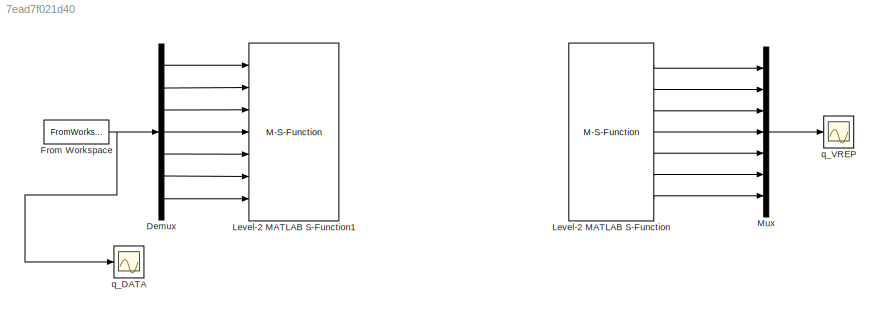
MODEL slx_7ead7f021d40
KIND model
CONFIG AbsTol = auto
CONFIG EnableMultiTasking = on
CONFIG FixedStep = 0.005
CONFIG InitFcn = clear all\nclc\n\nglobal clientID\nglobal vrep\nglobal vecJoints nJoints\n\nload_path\n\n\naddpath('C:\Program Files\V-REP3\V-REP_PRO_EDU\programming\remoteApiBindings\lib\lib\Windows\64Bit')\n\n\ndisp('Program started');\nvrep=remApi('remoteApi'); % using the prototype file (remoteApiProto.m)\nvrep.simxFinish(-1); % just in case, close all opened connections\nclientID=vrep.simxStart('127.0.0.1',19997,true,true,5...<+921ch>
CONFIG MaxStep = 0.010
CONFIG MinStep = auto
CONFIG RelTol = 1e-3
CONFIG SampleTimeConstraint = Unconstrained
CONFIG Solver = FixedStepDiscrete
CONFIG SolverName = FixedStepDiscrete
CONFIG StartTime = 0
CONFIG StopFcn = global clientID\n\nvrep.simxStopSimulation(clientID,vrep.simx_opmode_oneshot_wait);\n
CONFIG StopTime = 21
BLOCK [Demux] Demux
  DisplayOption = bar
  Outputs = 7
  Ports = [1, 7]
BLOCK [FromWorkspace] From Workspace
  OutDataTypeStr = double
  SampleTime = 0
  VariableName = configs
  ZeroCross = on
BLOCK [M-S-Function] Level-2 MATLAB S-Function
  FunctionName = Vrep_source
  Ports = [0, 7]
BLOCK [M-S-Function] Level-2 MATLAB S-Function1
  FunctionName = Vrep_sink
  Ports = [7]
BLOCK [Mux] Mux
  DisplayOption = bar
  Inputs = 7
  Ports = [7, 1]
BLOCK [Scope] q_DATA
  Floating = off
  NumInputPorts = 1
  Ports = [1]
  ScopeSpecificationString = Simulink.scopes.TimeScopeBlockCfg('CurrentConfiguration', extmgr.ConfigurationSet(extmgr.Configuration('Core','General UI',true),extmgr.Configuration('Core','Source UI',true),extmgr.Configuration('Sources','WiredSimulink',true,'DataLoggingVariableName','ScopeData1'),extmgr.Configuration('Visuals','Time Domain',true,'SerializedDisplays',{struct('MinYLimReal','-1.96349','MaxYLimReal','1.96349','YLab...<+1708ch>
BLOCK [Scope] q_VREP
  Floating = off
  NumInputPorts = 1
  Ports = [1]
  ScopeSpecificationString = Simulink.scopes.TimeScopeBlockCfg('CurrentConfiguration', extmgr.ConfigurationSet(extmgr.Configuration('Core','General UI',true),extmgr.Configuration('Core','Source UI',true),extmgr.Configuration('Sources','WiredSimulink',true,'DataLoggingVariableName','ScopeData1'),extmgr.Configuration('Visuals','Time Domain',true,'SerializedDisplays',{struct('MinYLimReal','-2.13767','MaxYLimReal','3.53425','YLab...<+1783ch>
LINE Demux:1 -> Level-2 MATLAB S-Function1:1
LINE Demux:2 -> Level-2 MATLAB S-Function1:2
LINE Demux:3 -> Level-2 MATLAB S-Function1:3
LINE Demux:4 -> Level-2 MATLAB S-Function1:4
LINE Demux:5 -> Level-2 MATLAB S-Function1:5
LINE Demux:6 -> Level-2 MATLAB S-Function1:6
LINE Demux:7 -> Level-2 MATLAB S-Function1:7
NET From Workspace:1 -> Demux:1, q_DATA:1
LINE Level-2 MATLAB S-Function:1 -> Mux:1
LINE Level-2 MATLAB S-Function:2 -> Mux:2
LINE Level-2 MATLAB S-Function:3 -> Mux:3
LINE Level-2 MATLAB S-Function:4 -> Mux:4
LINE Level-2 MATLAB S-Function:5 -> Mux:5
LINE Level-2 MATLAB S-Function:6 -> Mux:6
LINE Level-2 MATLAB S-Function:7 -> Mux:7
LINE Mux:1 -> q_VREP:1
note: NET lines group one-source signal fan-out (src -> all destinations, sorted); 1:1 wires keep LINE
